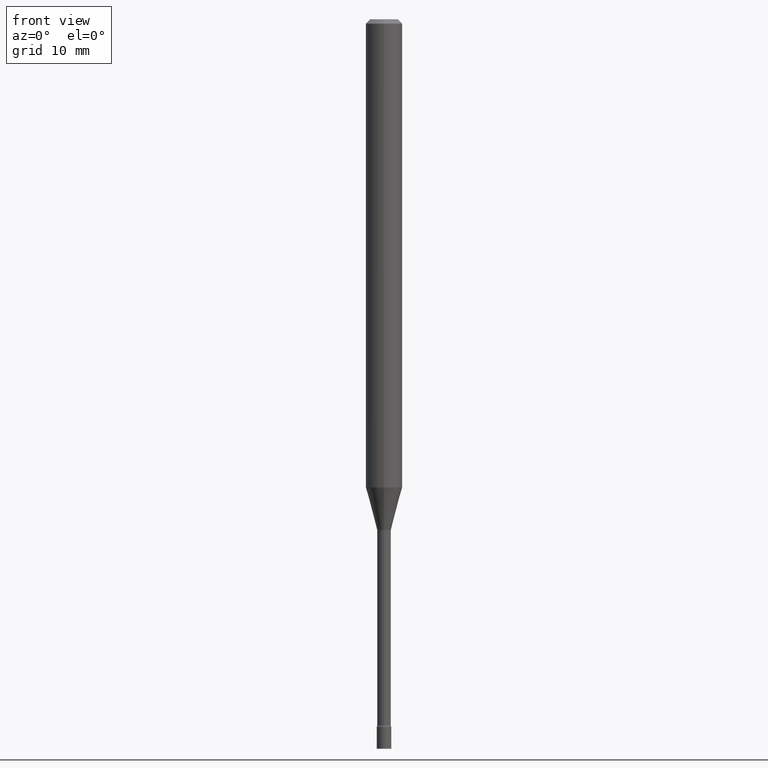
[diagram: clean part render]
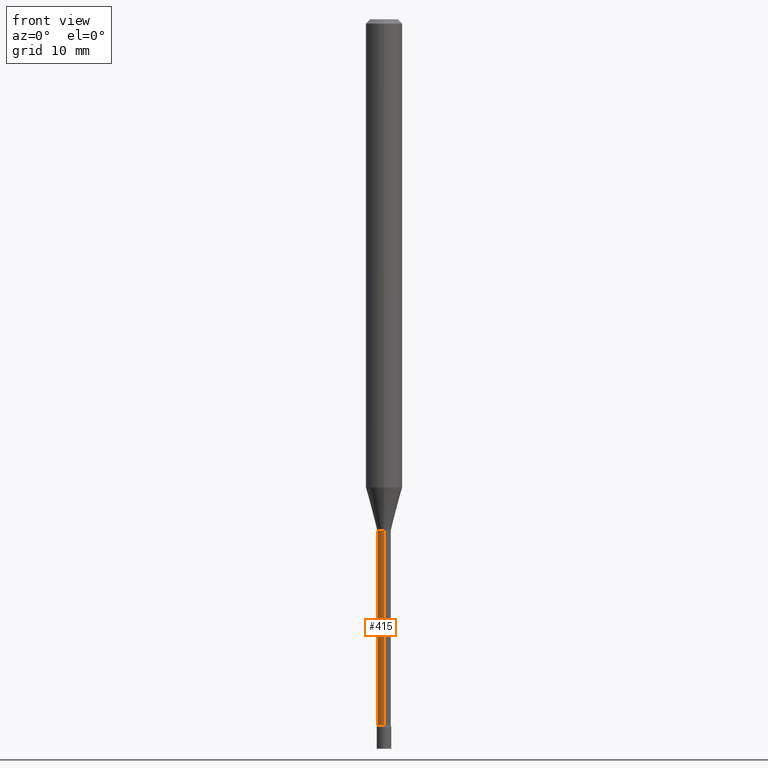
[diagram: same view with one face highlighted and labeled with its STEP entity id]
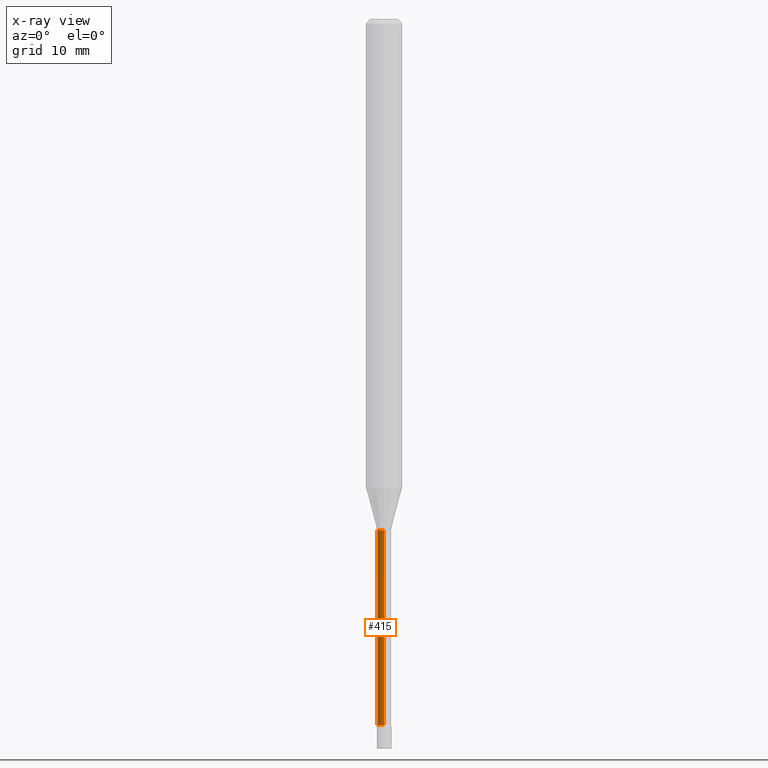
[diagram: x-ray of the same camera — body ghosted, the highlighted face saturated]
A machine part, front view. The second image highlights one B-rep face of the part: STEP entity #415.
The next image is the same camera in x-ray: the body ghosted, the highlighted face saturated — about 0% of this face is hidden behind the body in this view.
In plain terms, the highlighted cylindrical surface (edge-blend (fillet) strip) has radius 0.5969 mm, axis along (-0, 0, 1).
Its self-contained STEP definition (entity closure, byte-faithful):
#21 = VERTEX_POINT ( 'NONE', #28 ) ;
#28 = CARTESIAN_POINT ( 'NONE',  ( -1.640996229255844069E-16, -0.02350000000000612016, -1.751974787463811190 ) ) ;
#46 = CARTESIAN_POINT ( 'NONE',  ( 0.000000000000000000, 0.000000000000000000, 0.000000000000000000 ) ) ;
#48 = CYLINDRICAL_SURFACE ( 'NONE', #500, 0.02350000000000004516 ) ;
#55 = CARTESIAN_POINT ( 'NONE',  ( 4.284383539561106192E-29, -6.117010407716134379E-15, -1.751974787463811190 ) ) ;
#56 = EDGE_CURVE ( 'NONE', #411, #379, #166, .T. ) ;
#74 = DIRECTION ( 'NONE',  ( -6.982962677686265133E-15, -1.000000000000000000, 0.000000000000000000 ) ) ;
#83 = DIRECTION ( 'NONE',  ( -2.445459586643511658E-29, 3.491494541751496264E-15, 1.000000000000000000 ) ) ;
#95 = DIRECTION ( 'NONE',  ( -2.445459586643511658E-29, 3.491494541751495870E-15, 1.000000000000000000 ) ) ;
#143 = VECTOR ( 'NONE', #311, 39.37007874015748143 ) ;
#156 = FACE_OUTER_BOUND ( 'NONE', #304, .T. ) ;
#166 = CIRCLE ( 'NONE', #194, 0.02350000000000008679 ) ;
#168 = ORIENTED_EDGE ( 'NONE', *, *, #355, .T. ) ;
#194 = AXIS2_PLACEMENT_3D ( 'NONE', #264, #266, #74 ) ;
#216 = EDGE_CURVE ( 'NONE', #366, #21, #373, .T. ) ;
#218 = DIRECTION ( 'NONE',  ( -2.445459586643511658E-29, 3.491494541751496264E-15, 1.000000000000000000 ) ) ;
#231 = CARTESIAN_POINT ( 'NONE',  ( 1.669775429036238399E-16, 0.02350000000000004516, -8.205012173116032265E-17 ) ) ;
#252 = ORIENTED_EDGE ( 'NONE', *, *, #272, .F. ) ;
#264 = CARTESIAN_POINT ( 'NONE',  ( 5.914250230797479692E-29, -8.444045655943250067E-15, -2.418461651584689509 ) ) ;
#266 = DIRECTION ( 'NONE',  ( -2.445459586643511658E-29, 3.491494541751496264E-15, 1.000000000000000000 ) ) ;
#272 = EDGE_CURVE ( 'NONE', #411, #366, #502, .T. ) ;
#273 = CARTESIAN_POINT ( 'NONE',  ( -1.640996229255687037E-16, -0.02350000000000853143, -2.418461651584689509 ) ) ;
#304 = EDGE_LOOP ( 'NONE', ( #252, #506, #168, #496 ) ) ;
#311 = DIRECTION ( 'NONE',  ( -2.445459586643511658E-29, 3.491494541751495870E-15, 1.000000000000000000 ) ) ;
#315 = AXIS2_PLACEMENT_3D ( 'NONE', #55, #218, #428 ) ;
#349 = LINE ( 'NONE', #470, #143 ) ;
#355 = EDGE_CURVE ( 'NONE', #379, #21, #349, .T. ) ;
#360 = DIRECTION ( 'NONE',  ( -6.982962677686265133E-15, -1.000000000000000000, 3.491494541751496264E-15 ) ) ;
#366 = VERTEX_POINT ( 'NONE', #473 ) ;
#373 = CIRCLE ( 'NONE', #315, 0.02350000000000000352 ) ;
#379 = VERTEX_POINT ( 'NONE', #273 ) ;
#396 = CARTESIAN_POINT ( 'NONE',  ( 1.723066134218837606E-16, 0.02349999999999164563, -2.418461651584689509 ) ) ;
#411 = VERTEX_POINT ( 'NONE', #396 ) ;
#415 = ADVANCED_FACE ( 'NONE', ( #156 ), #48, .T. ) ;
#428 = DIRECTION ( 'NONE',  ( -6.982962677686265922E-15, -1.000000000000000000, 0.000000000000000000 ) ) ;
#436 = VECTOR ( 'NONE', #95, 39.37007874015748143 ) ;
#470 = CARTESIAN_POINT ( 'NONE',  ( -1.640996229256275477E-16, -0.02350000000000004516, 8.205012173116032265E-17 ) ) ;
#473 = CARTESIAN_POINT ( 'NONE',  ( 1.669775429036828812E-16, 0.02349999999999387995, -1.751974787463811190 ) ) ;
#496 = ORIENTED_EDGE ( 'NONE', *, *, #216, .F. ) ;
#500 = AXIS2_PLACEMENT_3D ( 'NONE', #46, #83, #360 ) ;
#502 = LINE ( 'NONE', #231, #436 ) ;
#506 = ORIENTED_EDGE ( 'NONE', *, *, #56, .T. ) ;